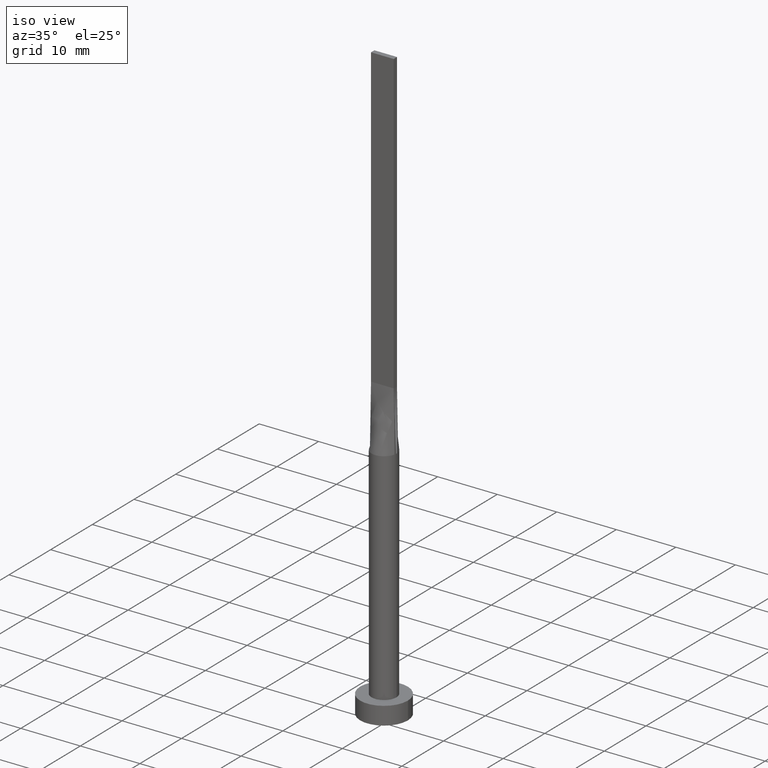
[diagram: clean part render]
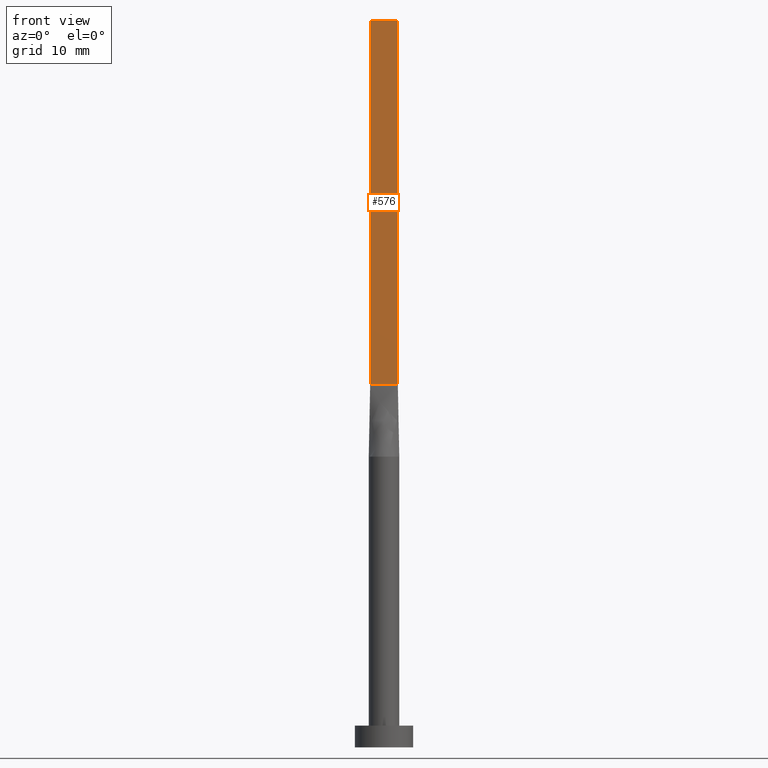
[diagram: tour spotlight — one face highlighted and labeled with its STEP entity id]
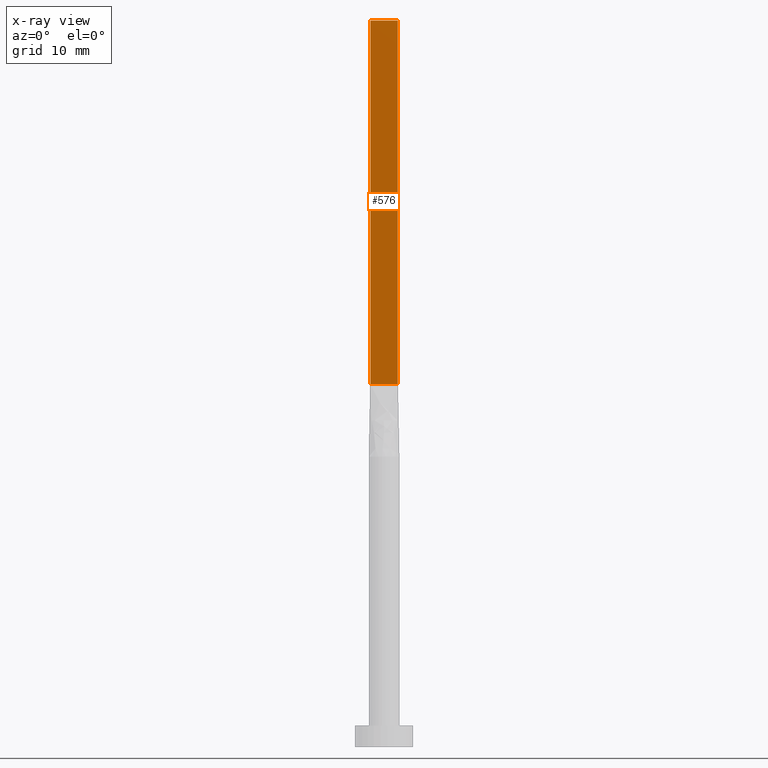
[diagram: x-ray of the same camera — body ghosted, this tour face saturated]
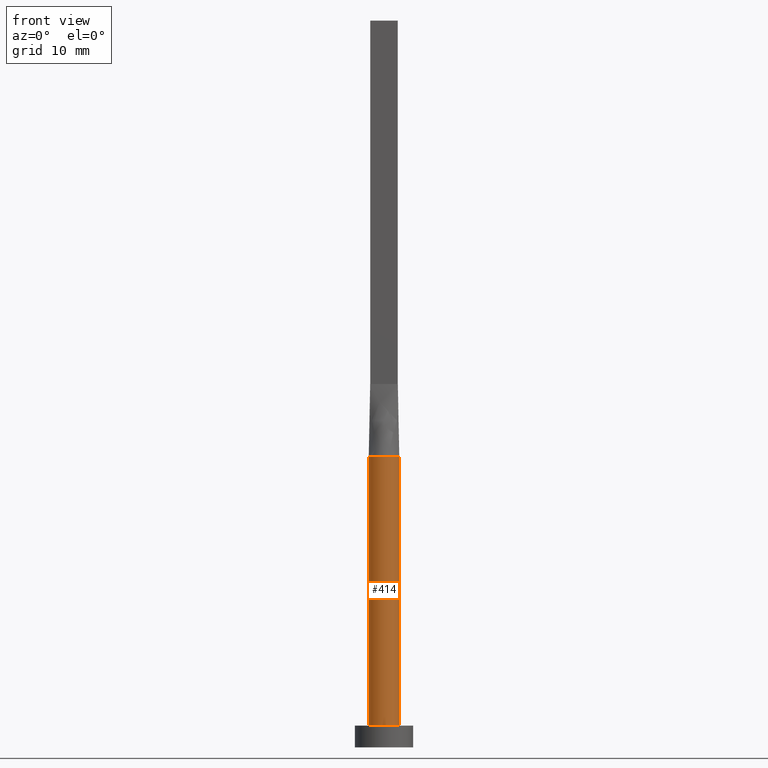
[diagram: tour spotlight — one face highlighted and labeled with its STEP entity id]
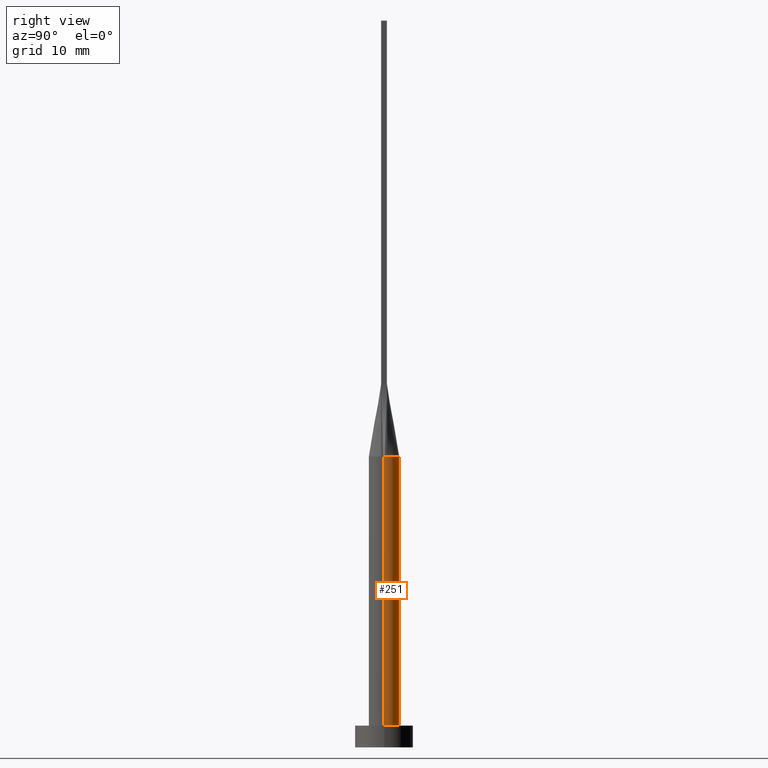
[diagram: tour spotlight — one face highlighted and labeled with its STEP entity id]
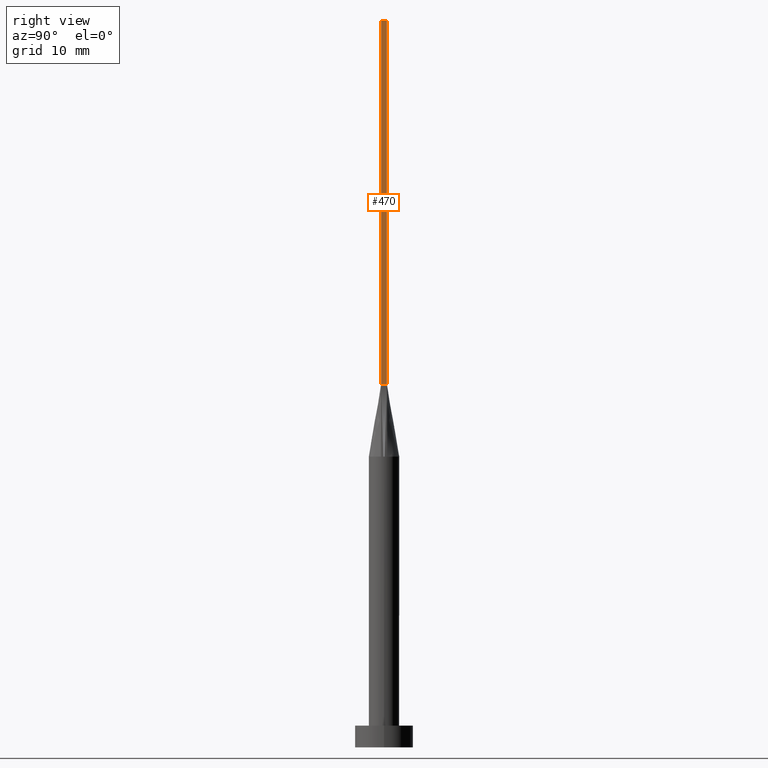
[diagram: tour spotlight — one face highlighted and labeled with its STEP entity id]
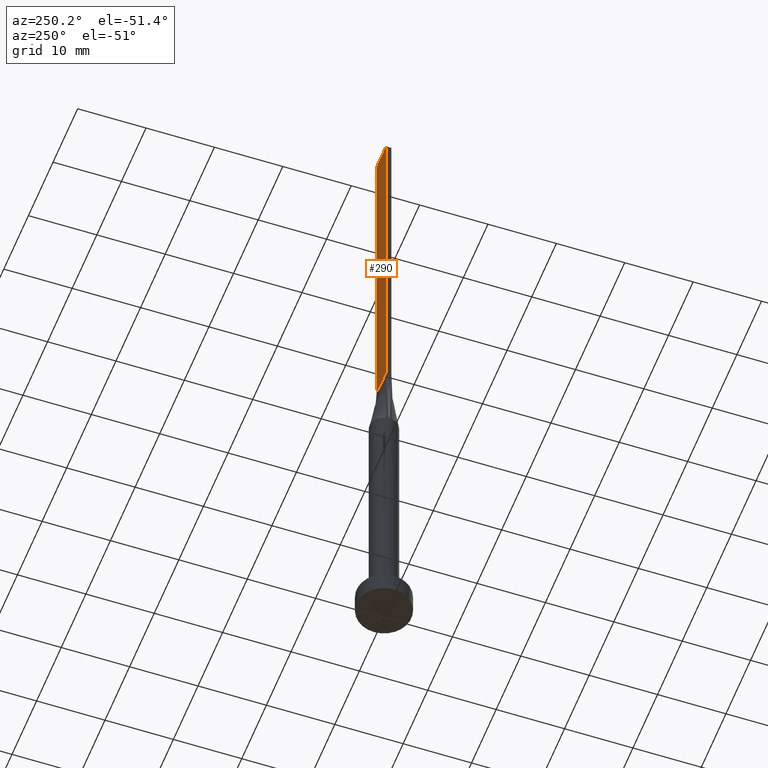
[diagram: tour spotlight — one face highlighted and labeled with its STEP entity id]
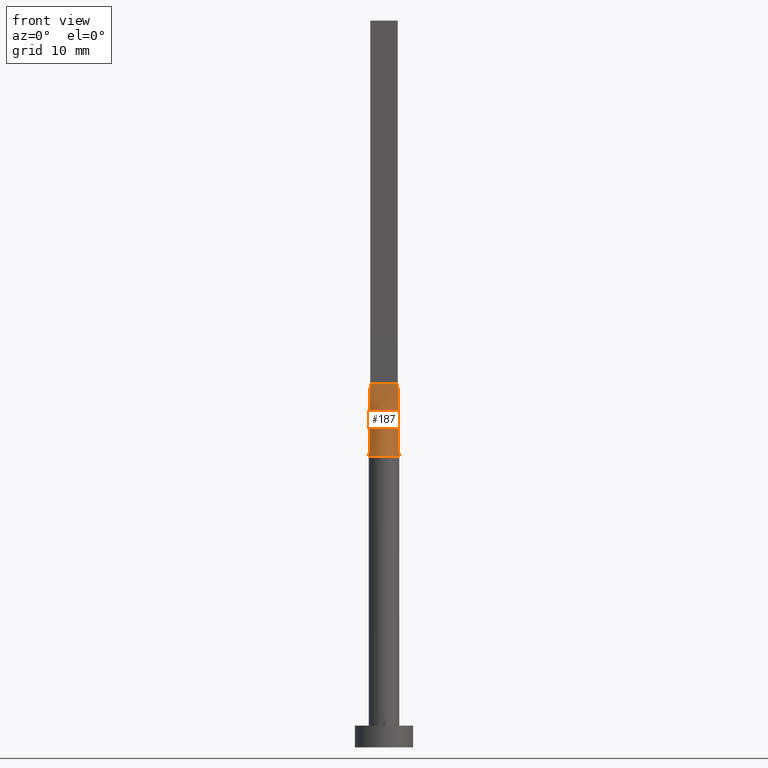
[diagram: tour spotlight — one face highlighted and labeled with its STEP entity id]
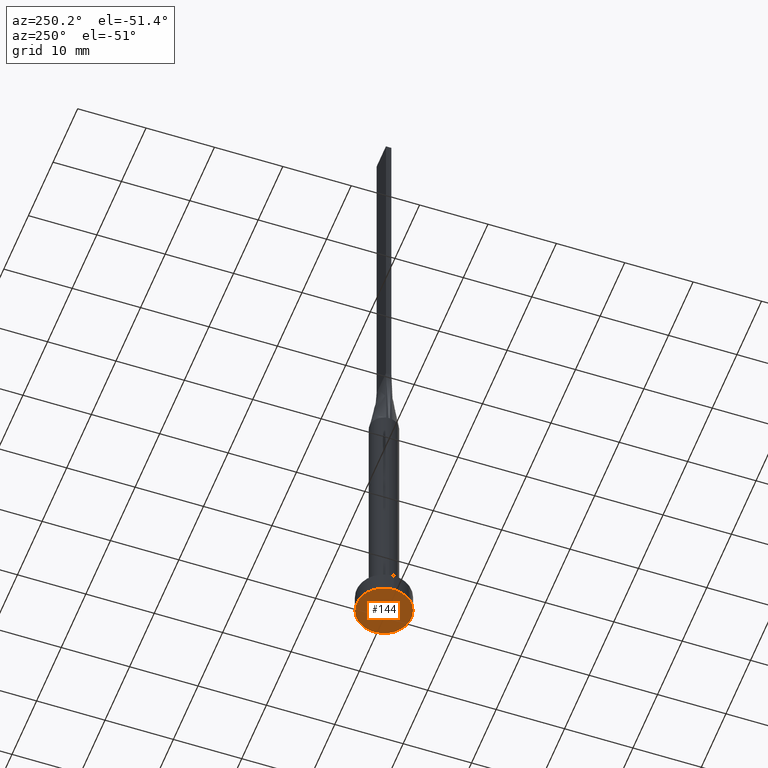
[diagram: tour spotlight — one face highlighted and labeled with its STEP entity id]
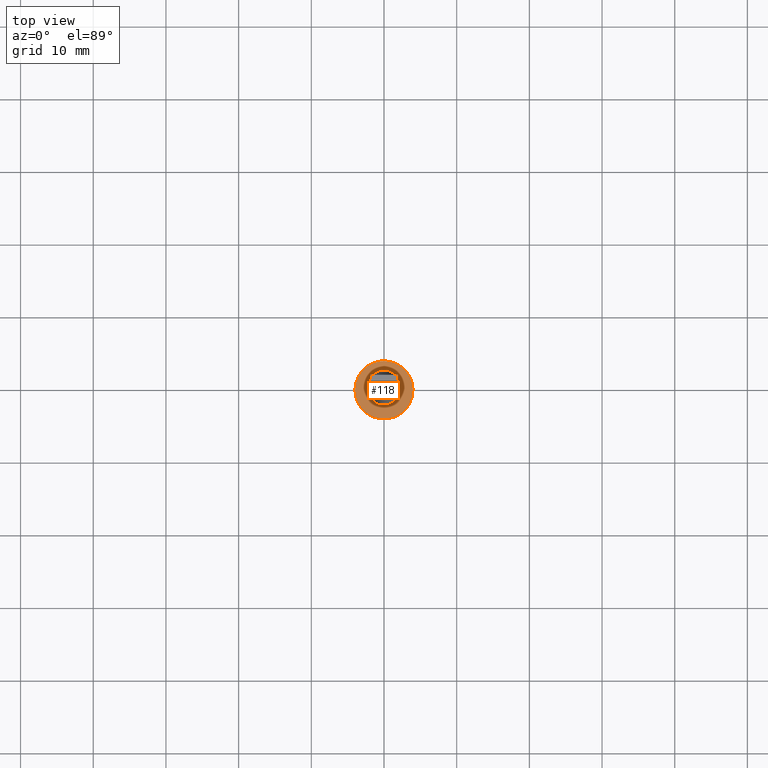
[diagram: tour spotlight — one face highlighted and labeled with its STEP entity id]
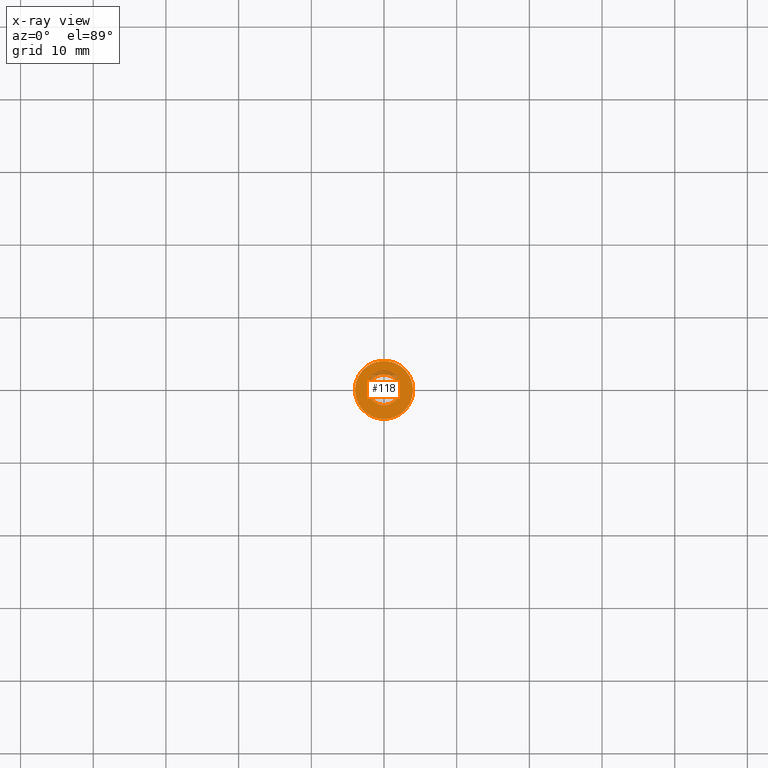
[diagram: x-ray of the same camera — body ghosted, this tour face saturated]
A machine part: a face-by-face anatomy tour. The part has 15 B-rep faces; the first image is the clean iso view, then the 8 largest visible faces are spotlighted one at a time (largest first), each with its STEP entity span.

Face 1 — front view, entity #576. An x-ray twin of the same camera follows (body ghosted, this face saturated) — the face is partly hidden behind the body. In plain terms, the highlighted planar face has unit normal (0, 1, -0).
Definition (entity closure, byte-faithful):
#5 = VERTEX_POINT ( 'NONE', #125 ) ;
#23 = AXIS2_PLACEMENT_3D ( 'NONE', #132, #80, #566 ) ;
#42 = CARTESIAN_POINT ( 'NONE',  ( -1.899999999999999911, -0.3999999999999995781, 50.00000000000000000 ) ) ;
#46 = VECTOR ( 'NONE', #106, 1000.000000000000000 ) ;
#80 = DIRECTION ( 'NONE',  ( 5.706327223607920020E-17, 1.000000000000000000, -0.000000000000000000 ) ) ;
#87 = VECTOR ( 'NONE', #335, 1000.000000000000000 ) ;
#98 = DIRECTION ( 'NONE',  ( 1.000000000000000000, -5.706327223607918787E-17, 0.000000000000000000 ) ) ;
#106 = DIRECTION ( 'NONE',  ( 1.000000000000000000, -5.706327223607920020E-17, 0.000000000000000000 ) ) ;
#112 = LINE ( 'NONE', #242, #87 ) ;
#125 = CARTESIAN_POINT ( 'NONE',  ( 1.899999999999999023, -0.3999999999999998002, 50.00000000000000000 ) ) ;
#132 = CARTESIAN_POINT ( 'NONE',  ( -1.899999999999999911, -0.3999999999999995781, 100.0000000000000000 ) ) ;
#151 = CARTESIAN_POINT ( 'NONE',  ( -1.899999999999999911, -0.3999999999999995781, 100.0000000000000000 ) ) ;
#182 = VECTOR ( 'NONE', #392, 1000.000000000000000 ) ;
#200 = ORIENTED_EDGE ( 'NONE', *, *, #561, .F. ) ;
#220 = EDGE_CURVE ( 'NONE', #484, #502, #549, .T. ) ;
#233 = ORIENTED_EDGE ( 'NONE', *, *, #422, .T. ) ;
#242 = CARTESIAN_POINT ( 'NONE',  ( -1.899999999999999911, -0.3999999999999995781, 100.0000000000000000 ) ) ;
#300 = EDGE_CURVE ( 'NONE', #484, #463, #112, .T. ) ;
#302 = CARTESIAN_POINT ( 'NONE',  ( 1.899999999999999023, -0.3999999999999998002, 100.0000000000000000 ) ) ;
#312 = LINE ( 'NONE', #439, #398 ) ;
#335 = DIRECTION ( 'NONE',  ( -0.000000000000000000, -0.000000000000000000, -1.000000000000000000 ) ) ;
#347 = FACE_OUTER_BOUND ( 'NONE', #486, .T. ) ;
#349 = ORIENTED_EDGE ( 'NONE', *, *, #300, .T. ) ;
#392 = DIRECTION ( 'NONE',  ( -0.000000000000000000, -0.000000000000000000, -1.000000000000000000 ) ) ;
#398 = VECTOR ( 'NONE', #98, 1000.000000000000000 ) ;
#422 = EDGE_CURVE ( 'NONE', #463, #5, #312, .T. ) ;
#438 = ORIENTED_EDGE ( 'NONE', *, *, #220, .F. ) ;
#439 = CARTESIAN_POINT ( 'NONE',  ( -1.899999999999999911, -0.3999999999999995781, 50.00000000000000000 ) ) ;
#463 = VERTEX_POINT ( 'NONE', #42 ) ;
#477 = LINE ( 'NONE', #571, #182 ) ;
#484 = VERTEX_POINT ( 'NONE', #580 ) ;
#486 = EDGE_LOOP ( 'NONE', ( #233, #200, #438, #349 ) ) ;
#502 = VERTEX_POINT ( 'NONE', #302 ) ;
#549 = LINE ( 'NONE', #151, #46 ) ;
#561 = EDGE_CURVE ( 'NONE', #502, #5, #477, .T. ) ;
#566 = DIRECTION ( 'NONE',  ( -1.000000000000000000, 5.706327223607920020E-17, 0.000000000000000000 ) ) ;
#571 = CARTESIAN_POINT ( 'NONE',  ( 1.899999999999999023, -0.3999999999999998002, 100.0000000000000000 ) ) ;
#573 = PLANE ( 'NONE',  #23 ) ;
#576 = ADVANCED_FACE ( 'NONE', ( #347 ), #573, .F. ) ;
#580 = CARTESIAN_POINT ( 'NONE',  ( -1.899999999999999911, -0.3999999999999995781, 100.0000000000000000 ) ) ;

Face 2 — front view, entity #414. In plain terms, the highlighted cylindrical surface (edge-blend (fillet) strip) has radius 2.1 mm, axis along (-0, -0, -1).
Definition (entity closure, byte-faithful):
#3 = DIRECTION ( 'NONE',  ( -0.000000000000000000, -0.000000000000000000, -1.000000000000000000 ) ) ;
#25 = DIRECTION ( 'NONE',  ( 0.000000000000000000, 0.000000000000000000, 1.000000000000000000 ) ) ;
#51 = FACE_OUTER_BOUND ( 'NONE', #161, .T. ) ;
#53 = DIRECTION ( 'NONE',  ( -0.000000000000000000, -0.000000000000000000, -1.000000000000000000 ) ) ;
#54 = DIRECTION ( 'NONE',  ( 1.000000000000000000, -8.881784197001252323E-16, 0.000000000000000000 ) ) ;
#56 = CIRCLE ( 'NONE', #426, 2.100000000000000089 ) ;
#62 = VERTEX_POINT ( 'NONE', #142 ) ;
#63 = DIRECTION ( 'NONE',  ( 0.000000000000000000, 0.000000000000000000, 1.000000000000000000 ) ) ;
#91 = CARTESIAN_POINT ( 'NONE',  ( -2.100000000000000089, 0.000000000000000000, 3.000000000000000000 ) ) ;
#93 = ORIENTED_EDGE ( 'NONE', *, *, #393, .F. ) ;
#109 = VERTEX_POINT ( 'NONE', #91 ) ;
#115 = ORIENTED_EDGE ( 'NONE', *, *, #214, .F. ) ;
#122 = CARTESIAN_POINT ( 'NONE',  ( -2.055145036631130129, -0.4326623253166036465, 40.00000000000000000 ) ) ;
#136 = AXIS2_PLACEMENT_3D ( 'NONE', #314, #263, #189 ) ;
#142 = CARTESIAN_POINT ( 'NONE',  ( 2.100000000000000089, 2.571758278209441957E-16, 3.000000000000000000 ) ) ;
#150 = ORIENTED_EDGE ( 'NONE', *, *, #163, .T. ) ;
#157 = AXIS2_PLACEMENT_3D ( 'NONE', #415, #63, #371 ) ;
#161 = EDGE_LOOP ( 'NONE', ( #319, #93, #115, #373, #150, #279 ) ) ;
#163 = EDGE_CURVE ( 'NONE', #558, #109, #179, .T. ) ;
#179 = LINE ( 'NONE', #226, #499 ) ;
#189 = DIRECTION ( 'NONE',  ( 1.000000000000000000, 0.000000000000000000, 0.000000000000000000 ) ) ;
#206 = CIRCLE ( 'NONE', #136, 2.100000000000000089 ) ;
#214 = EDGE_CURVE ( 'NONE', #343, #513, #538, .T. ) ;
#223 = CARTESIAN_POINT ( 'NONE',  ( -2.099758441344840243, -1.448674240509545331E-15, 40.00000000000000000 ) ) ;
#226 = CARTESIAN_POINT ( 'NONE',  ( -2.100000000000000089, 0.000000000000000000, 40.00000000000000000 ) ) ;
#237 = CARTESIAN_POINT ( 'NONE',  ( 2.100000000000000089, 2.571758278209441957E-16, 40.00000000000000000 ) ) ;
#263 = DIRECTION ( 'NONE',  ( 0.000000000000000000, 0.000000000000000000, 1.000000000000000000 ) ) ;
#264 = EDGE_CURVE ( 'NONE', #558, #343, #338, .T. ) ;
#269 = CARTESIAN_POINT ( 'NONE',  ( 0.000000000000000000, 0.000000000000000000, 40.00000000000000000 ) ) ;
#272 = CARTESIAN_POINT ( 'NONE',  ( 2.099758441344840243, 4.928843353830161703E-16, 40.00000000000000000 ) ) ;
#279 = ORIENTED_EDGE ( 'NONE', *, *, #404, .T. ) ;
#305 = VECTOR ( 'NONE', #3, 1000.000000000000000 ) ;
#314 = CARTESIAN_POINT ( 'NONE',  ( 0.000000000000000000, 0.000000000000000000, 3.000000000000000000 ) ) ;
#319 = ORIENTED_EDGE ( 'NONE', *, *, #382, .F. ) ;
#338 = CIRCLE ( 'NONE', #446, 2.100000000000000089 ) ;
#343 = VERTEX_POINT ( 'NONE', #122 ) ;
#367 = LINE ( 'NONE', #237, #305 ) ;
#371 = DIRECTION ( 'NONE',  ( 1.000000000000000000, 0.000000000000000000, 0.000000000000000000 ) ) ;
#373 = ORIENTED_EDGE ( 'NONE', *, *, #264, .F. ) ;
#382 = EDGE_CURVE ( 'NONE', #466, #62, #367, .T. ) ;
#393 = EDGE_CURVE ( 'NONE', #513, #466, #56, .T. ) ;
#401 = CARTESIAN_POINT ( 'NONE',  ( 0.000000000000000000, 0.000000000000000000, 40.00000000000000000 ) ) ;
#404 = EDGE_CURVE ( 'NONE', #109, #62, #206, .T. ) ;
#409 = DIRECTION ( 'NONE',  ( -0.000000000000000000, -0.000000000000000000, -1.000000000000000000 ) ) ;
#414 = ADVANCED_FACE ( 'NONE', ( #51 ), #544, .T. ) ;
#415 = CARTESIAN_POINT ( 'NONE',  ( 0.000000000000000000, 0.000000000000000000, 40.00000000000000000 ) ) ;
#426 = AXIS2_PLACEMENT_3D ( 'NONE', #401, #451, #54 ) ;
#446 = AXIS2_PLACEMENT_3D ( 'NONE', #456, #25, #559 ) ;
#451 = DIRECTION ( 'NONE',  ( 0.000000000000000000, 0.000000000000000000, 1.000000000000000000 ) ) ;
#456 = CARTESIAN_POINT ( 'NONE',  ( 0.000000000000000000, 0.000000000000000000, 40.00000000000000000 ) ) ;
#466 = VERTEX_POINT ( 'NONE', #272 ) ;
#491 = DIRECTION ( 'NONE',  ( -1.000000000000000000, 0.000000000000000000, 0.000000000000000000 ) ) ;
#499 = VECTOR ( 'NONE', #53, 1000.000000000000000 ) ;
#513 = VERTEX_POINT ( 'NONE', #528 ) ;
#525 = AXIS2_PLACEMENT_3D ( 'NONE', #269, #409, #491 ) ;
#528 = CARTESIAN_POINT ( 'NONE',  ( 2.055161022591414977, -0.4326655822303633325, 40.00000000000000000 ) ) ;
#538 = CIRCLE ( 'NONE', #157, 2.100000000000000089 ) ;
#544 = CYLINDRICAL_SURFACE ( 'NONE', #525, 2.100000000000000089 ) ;
#558 = VERTEX_POINT ( 'NONE', #223 ) ;
#559 = DIRECTION ( 'NONE',  ( 1.000000000000000000, 0.000000000000000000, 0.000000000000000000 ) ) ;

Face 3 — right view, entity #251. In plain terms, the highlighted cylindrical surface (edge-blend (fillet) strip) has radius 2.1 mm, axis along (-0, -0, -1).
Definition (entity closure, byte-faithful):
#1 = DIRECTION ( 'NONE',  ( 1.000000000000000000, 0.000000000000000000, 0.000000000000000000 ) ) ;
#3 = DIRECTION ( 'NONE',  ( -0.000000000000000000, -0.000000000000000000, -1.000000000000000000 ) ) ;
#17 = DIRECTION ( 'NONE',  ( 1.000000000000000000, 0.000000000000000000, 0.000000000000000000 ) ) ;
#26 = CARTESIAN_POINT ( 'NONE',  ( 0.5670887265440297531, 2.040296735810463780, 40.00000000000000711 ) ) ;
#38 = ORIENTED_EDGE ( 'NONE', *, *, #108, .F. ) ;
#47 = ORIENTED_EDGE ( 'NONE', *, *, #382, .T. ) ;
#53 = DIRECTION ( 'NONE',  ( -0.000000000000000000, -0.000000000000000000, -1.000000000000000000 ) ) ;
#62 = VERTEX_POINT ( 'NONE', #142 ) ;
#64 = CARTESIAN_POINT ( 'NONE',  ( -1.960396204527856456, 0.7808940436533434726, 40.00000000000000000 ) ) ;
#67 = CARTESIAN_POINT ( 'NONE',  ( 0.2839879338753505955, 2.100000000000000533, 40.00000000000000000 ) ) ;
#91 = CARTESIAN_POINT ( 'NONE',  ( -2.100000000000000089, 0.000000000000000000, 3.000000000000000000 ) ) ;
#107 = CARTESIAN_POINT ( 'NONE',  ( -1.638039177766652976, 1.336522195786985057, 40.00000000000000711 ) ) ;
#108 = EDGE_CURVE ( 'NONE', #533, #558, #405, .T. ) ;
#109 = VERTEX_POINT ( 'NONE', #91 ) ;
#117 = CARTESIAN_POINT ( 'NONE',  ( 2.055132260641998609, 0.4326595789354660826, 40.00000000000000000 ) ) ;
#119 = CARTESIAN_POINT ( 'NONE',  ( 0.000000000000000000, 0.000000000000000000, 40.00000000000000000 ) ) ;
#135 = CARTESIAN_POINT ( 'NONE',  ( 0.000000000000000000, 0.000000000000000000, 40.00000000000000000 ) ) ;
#142 = CARTESIAN_POINT ( 'NONE',  ( 2.100000000000000089, 2.571758278209441957E-16, 3.000000000000000000 ) ) ;
#153 = EDGE_LOOP ( 'NONE', ( #359, #47, #331, #467, #38, #458 ) ) ;
#160 = CARTESIAN_POINT ( 'NONE',  ( 1.288188016604684183, 1.676316068528189041, 40.00000000000000711 ) ) ;
#163 = EDGE_CURVE ( 'NONE', #558, #109, #179, .T. ) ;
#165 = AXIS2_PLACEMENT_3D ( 'NONE', #313, #261, #306 ) ;
#177 = EDGE_CURVE ( 'NONE', #466, #362, #341, .T. ) ;
#179 = LINE ( 'NONE', #226, #499 ) ;
#207 = CARTESIAN_POINT ( 'NONE',  ( 0.000000000000000000, 0.000000000000000000, 3.000000000000000000 ) ) ;
#212 = CARTESIAN_POINT ( 'NONE',  ( 1.769939800381044259, 1.149026496286139620, 40.00000000000000000 ) ) ;
#223 = CARTESIAN_POINT ( 'NONE',  ( -2.099758441344840243, -1.448674240509545331E-15, 40.00000000000000000 ) ) ;
#226 = CARTESIAN_POINT ( 'NONE',  ( -2.100000000000000089, 0.000000000000000000, 40.00000000000000000 ) ) ;
#237 = CARTESIAN_POINT ( 'NONE',  ( 2.100000000000000089, 2.571758278209441957E-16, 40.00000000000000000 ) ) ;
#247 = CARTESIAN_POINT ( 'NONE',  ( -1.288188016604684183, 1.676316068528189263, 40.00000000000000711 ) ) ;
#249 = CARTESIAN_POINT ( 'NONE',  ( 2.055132260641998609, 0.4326595789354660826, 40.00000000000000000 ) ) ;
#250 = CARTESIAN_POINT ( 'NONE',  ( 2.019676033883313515, 0.6001949545017501997, 39.99999999999998579 ) ) ;
#251 = ADVANCED_FACE ( 'NONE', ( #468 ), #381, .T. ) ;
#259 = AXIS2_PLACEMENT_3D ( 'NONE', #119, #423, #560 ) ;
#261 = DIRECTION ( 'NONE',  ( 0.000000000000000000, 0.000000000000000000, 1.000000000000000000 ) ) ;
#272 = CARTESIAN_POINT ( 'NONE',  ( 2.099758441344840243, 4.928843353830161703E-16, 40.00000000000000000 ) ) ;
#305 = VECTOR ( 'NONE', #3, 1000.000000000000000 ) ;
#306 = DIRECTION ( 'NONE',  ( 1.000000000000000000, 0.000000000000000000, 0.000000000000000000 ) ) ;
#313 = CARTESIAN_POINT ( 'NONE',  ( 0.000000000000000000, 0.000000000000000000, 40.00000000000000000 ) ) ;
#316 = EDGE_CURVE ( 'NONE', #62, #109, #411, .T. ) ;
#321 = B_SPLINE_CURVE_WITH_KNOTS ( 'NONE', 3,
 ( #117, #250, #424, #212, #563, #160, #556, #26, #67, #384, #326, #501, #247, #107, #461, #64, #397, #449 ),
 .UNSPECIFIED., .F., .F.,
 ( 4, 2, 2, 2, 2, 2, 2, 2, 4 ),
 ( 0.000000000000000000, 0.1250000000000000000, 0.2500000000000000000, 0.3750000000000000000, 0.5000000000000000000, 0.6250000000000000000, 0.7500000000000000000, 0.8750000000000000000, 1.000000000000000000 ),
 .UNSPECIFIED. ) ;
#326 = CARTESIAN_POINT ( 'NONE',  ( -0.5670887265440298641, 2.040296735810464668, 40.00000000000000711 ) ) ;
#330 = DIRECTION ( 'NONE',  ( 0.000000000000000000, 0.000000000000000000, 1.000000000000000000 ) ) ;
#331 = ORIENTED_EDGE ( 'NONE', *, *, #316, .T. ) ;
#341 = CIRCLE ( 'NONE', #165, 2.100000000000000089 ) ;
#359 = ORIENTED_EDGE ( 'NONE', *, *, #177, .F. ) ;
#362 = VERTEX_POINT ( 'NONE', #249 ) ;
#367 = LINE ( 'NONE', #237, #305 ) ;
#372 = AXIS2_PLACEMENT_3D ( 'NONE', #135, #577, #1 ) ;
#375 = EDGE_CURVE ( 'NONE', #362, #533, #321, .T. ) ;
#378 = AXIS2_PLACEMENT_3D ( 'NONE', #207, #330, #17 ) ;
#381 = CYLINDRICAL_SURFACE ( 'NONE', #259, 2.100000000000000089 ) ;
#382 = EDGE_CURVE ( 'NONE', #466, #62, #367, .T. ) ;
#384 = CARTESIAN_POINT ( 'NONE',  ( -0.2839879338753505955, 2.100000000000000533, 39.99999999999998579 ) ) ;
#397 = CARTESIAN_POINT ( 'NONE',  ( -2.019676033883313959, 0.6001949545017503107, 39.99999999999999289 ) ) ;
#405 = CIRCLE ( 'NONE', #372, 2.100000000000000089 ) ;
#411 = CIRCLE ( 'NONE', #378, 2.100000000000000089 ) ;
#423 = DIRECTION ( 'NONE',  ( -0.000000000000000000, -0.000000000000000000, -1.000000000000000000 ) ) ;
#424 = CARTESIAN_POINT ( 'NONE',  ( 1.960396204527856900, 0.7808940436533436946, 40.00000000000002132 ) ) ;
#449 = CARTESIAN_POINT ( 'NONE',  ( -2.055148177435248691, 0.4326628259079252081, 40.00000000000000000 ) ) ;
#458 = ORIENTED_EDGE ( 'NONE', *, *, #375, .F. ) ;
#461 = CARTESIAN_POINT ( 'NONE',  ( -1.769939800381045147, 1.149026496286139842, 40.00000000000000711 ) ) ;
#466 = VERTEX_POINT ( 'NONE', #272 ) ;
#467 = ORIENTED_EDGE ( 'NONE', *, *, #163, .F. ) ;
#468 = FACE_OUTER_BOUND ( 'NONE', #153, .T. ) ;
#499 = VECTOR ( 'NONE', #53, 1000.000000000000000 ) ;
#501 = CARTESIAN_POINT ( 'NONE',  ( -1.069497409764671003, 1.827724181718571872, 40.00000000000000711 ) ) ;
#533 = VERTEX_POINT ( 'NONE', #575 ) ;
#556 = CARTESIAN_POINT ( 'NONE',  ( 1.069497409764671003, 1.827724181718572538, 40.00000000000000711 ) ) ;
#558 = VERTEX_POINT ( 'NONE', #223 ) ;
#560 = DIRECTION ( 'NONE',  ( -1.000000000000000000, 0.000000000000000000, 0.000000000000000000 ) ) ;
#563 = CARTESIAN_POINT ( 'NONE',  ( 1.638039177766652754, 1.336522195786985057, 40.00000000000000711 ) ) ;
#575 = CARTESIAN_POINT ( 'NONE',  ( -2.055148177435248691, 0.4326628259079252081, 40.00000000000000000 ) ) ;
#577 = DIRECTION ( 'NONE',  ( 0.000000000000000000, 0.000000000000000000, 1.000000000000000000 ) ) ;

Face 4 — right view, entity #470. In plain terms, the highlighted planar face has unit normal (-1, 0, 0).
Definition (entity closure, byte-faithful):
#5 = VERTEX_POINT ( 'NONE', #125 ) ;
#10 = CARTESIAN_POINT ( 'NONE',  ( 1.899999999999999023, -0.3999999999999998002, 100.0000000000000000 ) ) ;
#40 = VECTOR ( 'NONE', #498, 1000.000000000000000 ) ;
#48 = PLANE ( 'NONE',  #420 ) ;
#68 = VECTOR ( 'NONE', #386, 1000.000000000000000 ) ;
#70 = EDGE_CURVE ( 'NONE', #5, #515, #322, .T. ) ;
#94 = FACE_OUTER_BOUND ( 'NONE', #188, .T. ) ;
#97 = ORIENTED_EDGE ( 'NONE', *, *, #514, .F. ) ;
#100 = DIRECTION ( 'NONE',  ( -8.131516293641283255E-16, -1.000000000000000000, 0.000000000000000000 ) ) ;
#125 = CARTESIAN_POINT ( 'NONE',  ( 1.899999999999999023, -0.3999999999999998002, 50.00000000000000000 ) ) ;
#143 = DIRECTION ( 'NONE',  ( -1.000000000000000000, 8.131516293641283255E-16, 0.000000000000000000 ) ) ;
#164 = ORIENTED_EDGE ( 'NONE', *, *, #447, .F. ) ;
#168 = ORIENTED_EDGE ( 'NONE', *, *, #561, .T. ) ;
#173 = CARTESIAN_POINT ( 'NONE',  ( 1.899999999999999689, 0.4000000000000002442, 50.00000000000000000 ) ) ;
#174 = VECTOR ( 'NONE', #364, 1000.000000000000000 ) ;
#182 = VECTOR ( 'NONE', #392, 1000.000000000000000 ) ;
#184 = CARTESIAN_POINT ( 'NONE',  ( 1.899999999999999023, -0.3999999999999998002, 100.0000000000000000 ) ) ;
#188 = EDGE_LOOP ( 'NONE', ( #511, #97, #164, #168 ) ) ;
#254 = LINE ( 'NONE', #395, #68 ) ;
#302 = CARTESIAN_POINT ( 'NONE',  ( 1.899999999999999023, -0.3999999999999998002, 100.0000000000000000 ) ) ;
#322 = LINE ( 'NONE', #361, #40 ) ;
#361 = CARTESIAN_POINT ( 'NONE',  ( 1.899999999999999689, 0.4000000000000002442, 50.00000000000000000 ) ) ;
#364 = DIRECTION ( 'NONE',  ( 8.131516293641283255E-16, 1.000000000000000000, 0.000000000000000000 ) ) ;
#386 = DIRECTION ( 'NONE',  ( -0.000000000000000000, -0.000000000000000000, -1.000000000000000000 ) ) ;
#392 = DIRECTION ( 'NONE',  ( -0.000000000000000000, -0.000000000000000000, -1.000000000000000000 ) ) ;
#395 = CARTESIAN_POINT ( 'NONE',  ( 1.899999999999999689, 0.4000000000000002442, 100.0000000000000000 ) ) ;
#408 = VERTEX_POINT ( 'NONE', #537 ) ;
#420 = AXIS2_PLACEMENT_3D ( 'NONE', #184, #143, #100 ) ;
#445 = LINE ( 'NONE', #10, #174 ) ;
#447 = EDGE_CURVE ( 'NONE', #502, #408, #445, .T. ) ;
#470 = ADVANCED_FACE ( 'NONE', ( #94 ), #48, .F. ) ;
#477 = LINE ( 'NONE', #571, #182 ) ;
#498 = DIRECTION ( 'NONE',  ( -2.710505431213761085E-16, 1.000000000000000000, -0.000000000000000000 ) ) ;
#502 = VERTEX_POINT ( 'NONE', #302 ) ;
#511 = ORIENTED_EDGE ( 'NONE', *, *, #70, .T. ) ;
#514 = EDGE_CURVE ( 'NONE', #408, #515, #254, .T. ) ;
#515 = VERTEX_POINT ( 'NONE', #173 ) ;
#537 = CARTESIAN_POINT ( 'NONE',  ( 1.899999999999999689, 0.4000000000000002442, 100.0000000000000000 ) ) ;
#561 = EDGE_CURVE ( 'NONE', #502, #5, #477, .T. ) ;
#571 = CARTESIAN_POINT ( 'NONE',  ( 1.899999999999999023, -0.3999999999999998002, 100.0000000000000000 ) ) ;

Face 5 — auxiliary view, entity #290. In plain terms, the highlighted planar face has unit normal (0, -1, 0).
Definition (entity closure, byte-faithful):
#7 = CARTESIAN_POINT ( 'NONE',  ( -1.899999999999999689, 0.4000000000000002442, 50.00000000000000000 ) ) ;
#20 = CARTESIAN_POINT ( 'NONE',  ( 1.899999999999999689, 0.4000000000000002442, 100.0000000000000000 ) ) ;
#35 = EDGE_LOOP ( 'NONE', ( #57, #495, #328, #332 ) ) ;
#37 = VECTOR ( 'NONE', #69, 1000.000000000000000 ) ;
#57 = ORIENTED_EDGE ( 'NONE', *, *, #346, .T. ) ;
#59 = FACE_OUTER_BOUND ( 'NONE', #35, .T. ) ;
#68 = VECTOR ( 'NONE', #386, 1000.000000000000000 ) ;
#69 = DIRECTION ( 'NONE',  ( -1.000000000000000000, -0.000000000000000000, -0.000000000000000000 ) ) ;
#173 = CARTESIAN_POINT ( 'NONE',  ( 1.899999999999999689, 0.4000000000000002442, 50.00000000000000000 ) ) ;
#202 = LINE ( 'NONE', #510, #554 ) ;
#205 = LINE ( 'NONE', #519, #504 ) ;
#213 = AXIS2_PLACEMENT_3D ( 'NONE', #20, #337, #281 ) ;
#227 = VERTEX_POINT ( 'NONE', #280 ) ;
#254 = LINE ( 'NONE', #395, #68 ) ;
#275 = EDGE_CURVE ( 'NONE', #227, #444, #202, .T. ) ;
#280 = CARTESIAN_POINT ( 'NONE',  ( -1.899999999999999689, 0.4000000000000002442, 100.0000000000000000 ) ) ;
#281 = DIRECTION ( 'NONE',  ( 0.000000000000000000, -0.000000000000000000, -1.000000000000000000 ) ) ;
#289 = CARTESIAN_POINT ( 'NONE',  ( -1.899999999999999689, 0.4000000000000002442, 50.00000000000000000 ) ) ;
#290 = ADVANCED_FACE ( 'NONE', ( #59 ), #516, .F. ) ;
#328 = ORIENTED_EDGE ( 'NONE', *, *, #336, .F. ) ;
#332 = ORIENTED_EDGE ( 'NONE', *, *, #514, .T. ) ;
#336 = EDGE_CURVE ( 'NONE', #408, #227, #205, .T. ) ;
#337 = DIRECTION ( 'NONE',  ( 0.000000000000000000, -1.000000000000000000, 0.000000000000000000 ) ) ;
#346 = EDGE_CURVE ( 'NONE', #515, #444, #552, .T. ) ;
#386 = DIRECTION ( 'NONE',  ( -0.000000000000000000, -0.000000000000000000, -1.000000000000000000 ) ) ;
#395 = CARTESIAN_POINT ( 'NONE',  ( 1.899999999999999689, 0.4000000000000002442, 100.0000000000000000 ) ) ;
#408 = VERTEX_POINT ( 'NONE', #537 ) ;
#419 = DIRECTION ( 'NONE',  ( -0.000000000000000000, -0.000000000000000000, -1.000000000000000000 ) ) ;
#444 = VERTEX_POINT ( 'NONE', #7 ) ;
#462 = DIRECTION ( 'NONE',  ( -1.000000000000000000, 0.000000000000000000, 0.000000000000000000 ) ) ;
#495 = ORIENTED_EDGE ( 'NONE', *, *, #275, .F. ) ;
#504 = VECTOR ( 'NONE', #462, 1000.000000000000000 ) ;
#510 = CARTESIAN_POINT ( 'NONE',  ( -1.899999999999999689, 0.4000000000000002442, 100.0000000000000000 ) ) ;
#514 = EDGE_CURVE ( 'NONE', #408, #515, #254, .T. ) ;
#515 = VERTEX_POINT ( 'NONE', #173 ) ;
#516 = PLANE ( 'NONE',  #213 ) ;
#519 = CARTESIAN_POINT ( 'NONE',  ( 1.899999999999999689, 0.4000000000000002442, 100.0000000000000000 ) ) ;
#537 = CARTESIAN_POINT ( 'NONE',  ( 1.899999999999999689, 0.4000000000000002442, 100.0000000000000000 ) ) ;
#552 = LINE ( 'NONE', #289, #37 ) ;
#554 = VECTOR ( 'NONE', #419, 1000.000000000000000 ) ;

Face 6 — front view, entity #187. In plain terms, the highlighted face is a freeform B-spline surface patch.
Definition (entity closure, byte-faithful):
#5 = VERTEX_POINT ( 'NONE', #125 ) ;
#13 = CARTESIAN_POINT ( 'NONE',  ( 1.638039177766651200, -1.336522195786985279, 40.00000000000000000 ) ) ;
#15 = ORIENTED_EDGE ( 'NONE', *, *, #214, .T. ) ;
#16 = LINE ( 'NONE', #154, #310 ) ;
#18 = CARTESIAN_POINT ( 'NONE',  ( 0.6333333333333337478, -0.3999999999999997446, 50.00000000000000000 ) ) ;
#21 = ORIENTED_EDGE ( 'NONE', *, *, #422, .F. ) ;
#42 = CARTESIAN_POINT ( 'NONE',  ( -1.899999999999999911, -0.3999999999999995781, 50.00000000000000000 ) ) ;
#45 = CARTESIAN_POINT ( 'NONE',  ( -0.2839879338753514282, -2.100000000000000533, 39.99999999999999289 ) ) ;
#49 = CARTESIAN_POINT ( 'NONE',  ( -1.108333333333332504, -0.3999999999999995781, 50.00000000000000000 ) ) ;
#55 = CARTESIAN_POINT ( 'NONE',  ( -0.5670887265440306413, -2.040296735810464668, 40.00000000000001421 ) ) ;
#58 = CARTESIAN_POINT ( 'NONE',  ( 1.899999999999999023, -0.3999999999999998002, 50.00000000000000000 ) ) ;
#63 = DIRECTION ( 'NONE',  ( 0.000000000000000000, 0.000000000000000000, 1.000000000000000000 ) ) ;
#89 = CARTESIAN_POINT ( 'NONE',  ( -1.960396204527856456, -0.7808940436533431395, 40.00000000000000711 ) ) ;
#98 = DIRECTION ( 'NONE',  ( 1.000000000000000000, -5.706327223607918787E-17, 0.000000000000000000 ) ) ;
#102 = CARTESIAN_POINT ( 'NONE',  ( -0.6333333333333325266, -0.3999999999999996336, 50.00000000000000000 ) ) ;
#111 = CARTESIAN_POINT ( 'NONE',  ( 0.2839879338753495963, -2.100000000000000533, 39.99999999999998579 ) ) ;
#122 = CARTESIAN_POINT ( 'NONE',  ( -2.055145036631130129, -0.4326623253166036465, 40.00000000000000000 ) ) ;
#125 = CARTESIAN_POINT ( 'NONE',  ( 1.899999999999999023, -0.3999999999999998002, 50.00000000000000000 ) ) ;
#154 = CARTESIAN_POINT ( 'NONE',  ( -1.977477274236086657, -0.4163110051023335423, 45.00000000000000000 ) ) ;
#157 = AXIS2_PLACEMENT_3D ( 'NONE', #415, #63, #371 ) ;
#162 = ORIENTED_EDGE ( 'NONE', *, *, #475, .T. ) ;
#187 = ADVANCED_FACE ( 'NONE', ( #274 ), #245, .T. ) ;
#191 = LINE ( 'NONE', #229, #434 ) ;
#194 = CARTESIAN_POINT ( 'NONE',  ( -1.288188016604684627, -1.676316068528187930, 39.99999999999998579 ) ) ;
#198 = CARTESIAN_POINT ( 'NONE',  ( 2.019676033883313071, -0.6001949545017514209, 40.00000000000000711 ) ) ;
#201 = CARTESIAN_POINT ( 'NONE',  ( 1.108333333333333171, -0.3999999999999997446, 50.00000000000000000 ) ) ;
#204 = CARTESIAN_POINT ( 'NONE',  ( 0.7916666666666667407, -0.3999999999999997446, 50.00000000000000000 ) ) ;
#209 = EDGE_CURVE ( 'NONE', #463, #343, #16, .T. ) ;
#214 = EDGE_CURVE ( 'NONE', #343, #513, #538, .T. ) ;
#229 = CARTESIAN_POINT ( 'NONE',  ( 1.977477274236086213, -0.4163110051023340419, 45.00000000000000000 ) ) ;
#238 = CARTESIAN_POINT ( 'NONE',  ( -1.638039177766652310, -1.336522195786983724, 39.99999999999999289 ) ) ;
#243 = CARTESIAN_POINT ( 'NONE',  ( 2.054954548472172959, -0.4326220102046682281, 40.00000000000000000 ) ) ;
#245 = B_SPLINE_SURFACE_WITH_KNOTS ( 'NONE', 3, 1, ( 
 ( #358, #480 ),
 ( #355, #450 ),
 ( #89, #369 ),
 ( #266, #547 ),
 ( #238, #49 ),
 ( #194, #490 ),
 ( #452, #102 ),
 ( #55, #437 ),
 ( #45, #399 ),
 ( #111, #412 ),
 ( #329, #418 ),
 ( #325, #18 ),
 ( #377, #204 ),
 ( #13, #201 ),
 ( #505, #500 ),
 ( #374, #551 ),
 ( #198, #283 ),
 ( #243, #58 ) ),
 .UNSPECIFIED., .F., .F., .F.,
 ( 4, 2, 2, 2, 2, 2, 2, 2, 4 ),
 ( 2, 2 ),
 ( 0.000000000000000000, 0.1250000000000000833, 0.2500000000000001110, 0.3750000000000001110, 0.5000000000000001110, 0.6250000000000001110, 0.7500000000000000000, 0.8750000000000000000, 1.000000000000000000 ),
 ( 0.000000000000000000, 1.000000000000000000 ),
 .UNSPECIFIED. ) ;
#266 = CARTESIAN_POINT ( 'NONE',  ( -1.769939800381044481, -1.149026496286139176, 40.00000000000000000 ) ) ;
#274 = FACE_OUTER_BOUND ( 'NONE', #460, .T. ) ;
#276 = DIRECTION ( 'NONE',  ( -0.01549351246150994753, 0.003261792097160015180, 0.9998746480354023802 ) ) ;
#283 = CARTESIAN_POINT ( 'NONE',  ( 1.741666666666665808, -0.3999999999999997446, 50.00000000000000000 ) ) ;
#310 = VECTOR ( 'NONE', #459, 1000.000000000000227 ) ;
#312 = LINE ( 'NONE', #439, #398 ) ;
#325 = CARTESIAN_POINT ( 'NONE',  ( 1.069497409764670115, -1.827724181718573204, 40.00000000000002132 ) ) ;
#329 = CARTESIAN_POINT ( 'NONE',  ( 0.5670887265440289760, -2.040296735810464668, 40.00000000000001421 ) ) ;
#343 = VERTEX_POINT ( 'NONE', #122 ) ;
#355 = CARTESIAN_POINT ( 'NONE',  ( -2.019676033883314403, -0.6001949545017496446, 40.00000000000000000 ) ) ;
#358 = CARTESIAN_POINT ( 'NONE',  ( -2.054954548472173403, -0.4326220102046674509, 40.00000000000000000 ) ) ;
#369 = CARTESIAN_POINT ( 'NONE',  ( -1.583333333333332815, -0.3999999999999995226, 50.00000000000000000 ) ) ;
#371 = DIRECTION ( 'NONE',  ( 1.000000000000000000, 0.000000000000000000, 0.000000000000000000 ) ) ;
#374 = CARTESIAN_POINT ( 'NONE',  ( 1.960396204527856234, -0.7808940436533445828, 40.00000000000000000 ) ) ;
#377 = CARTESIAN_POINT ( 'NONE',  ( 1.288188016604683739, -1.676316068528189263, 40.00000000000001421 ) ) ;
#398 = VECTOR ( 'NONE', #98, 1000.000000000000000 ) ;
#399 = CARTESIAN_POINT ( 'NONE',  ( -0.1583333333333327708, -0.3999999999999996336, 50.00000000000000000 ) ) ;
#412 = CARTESIAN_POINT ( 'NONE',  ( 0.1583333333333337978, -0.3999999999999996336, 50.00000000000000000 ) ) ;
#415 = CARTESIAN_POINT ( 'NONE',  ( 0.000000000000000000, 0.000000000000000000, 40.00000000000000000 ) ) ;
#418 = CARTESIAN_POINT ( 'NONE',  ( 0.3166666666666672070, -0.3999999999999996891, 50.00000000000000000 ) ) ;
#422 = EDGE_CURVE ( 'NONE', #463, #5, #312, .T. ) ;
#434 = VECTOR ( 'NONE', #276, 1000.000000000000227 ) ;
#437 = CARTESIAN_POINT ( 'NONE',  ( -0.3166666666666659302, -0.3999999999999996336, 50.00000000000000000 ) ) ;
#439 = CARTESIAN_POINT ( 'NONE',  ( -1.899999999999999911, -0.3999999999999995781, 50.00000000000000000 ) ) ;
#450 = CARTESIAN_POINT ( 'NONE',  ( -1.741666666666666474, -0.3999999999999995226, 50.00000000000000000 ) ) ;
#452 = CARTESIAN_POINT ( 'NONE',  ( -1.069497409764672113, -1.827724181718571650, 40.00000000000002132 ) ) ;
#459 = DIRECTION ( 'NONE',  ( -0.01549351246150990416, -0.003261792097159956199, -0.9998746480354023802 ) ) ;
#460 = EDGE_LOOP ( 'NONE', ( #15, #162, #21, #550 ) ) ;
#463 = VERTEX_POINT ( 'NONE', #42 ) ;
#475 = EDGE_CURVE ( 'NONE', #513, #5, #191, .T. ) ;
#480 = CARTESIAN_POINT ( 'NONE',  ( -1.899999999999999911, -0.3999999999999995781, 50.00000000000000000 ) ) ;
#490 = CARTESIAN_POINT ( 'NONE',  ( -0.7916666666666657415, -0.3999999999999996336, 50.00000000000000000 ) ) ;
#500 = CARTESIAN_POINT ( 'NONE',  ( 1.266666666666666385, -0.3999999999999997446, 50.00000000000000000 ) ) ;
#505 = CARTESIAN_POINT ( 'NONE',  ( 1.769939800381043815, -1.149026496286140731, 40.00000000000000711 ) ) ;
#513 = VERTEX_POINT ( 'NONE', #528 ) ;
#528 = CARTESIAN_POINT ( 'NONE',  ( 2.055161022591414977, -0.4326655822303633325, 40.00000000000000000 ) ) ;
#538 = CIRCLE ( 'NONE', #157, 2.100000000000000089 ) ;
#547 = CARTESIAN_POINT ( 'NONE',  ( -1.266666666666665941, -0.3999999999999995226, 50.00000000000000000 ) ) ;
#550 = ORIENTED_EDGE ( 'NONE', *, *, #209, .T. ) ;
#551 = CARTESIAN_POINT ( 'NONE',  ( 1.583333333333332815, -0.3999999999999997446, 50.00000000000000000 ) ) ;

Face 7 — auxiliary view, entity #144. In plain terms, the highlighted planar face has unit normal (0, 0, 1).
Definition (entity closure, byte-faithful):
#12 = CIRCLE ( 'NONE', #121, 4.000000000000000000 ) ;
#82 = VERTEX_POINT ( 'NONE', #441 ) ;
#121 = AXIS2_PLACEMENT_3D ( 'NONE', #416, #376, #210 ) ;
#126 = EDGE_CURVE ( 'NONE', #567, #82, #521, .T. ) ;
#137 = ORIENTED_EDGE ( 'NONE', *, *, #246, .F. ) ;
#139 = DIRECTION ( 'NONE',  ( 1.000000000000000000, 0.000000000000000000, 0.000000000000000000 ) ) ;
#144 = ADVANCED_FACE ( 'NONE', ( #574 ), #271, .F. ) ;
#210 = DIRECTION ( 'NONE',  ( 1.000000000000000000, 0.000000000000000000, 0.000000000000000000 ) ) ;
#246 = EDGE_CURVE ( 'NONE', #82, #567, #12, .T. ) ;
#268 = EDGE_LOOP ( 'NONE', ( #543, #137 ) ) ;
#271 = PLANE ( 'NONE',  #436 ) ;
#277 = CARTESIAN_POINT ( 'NONE',  ( 0.000000000000000000, 0.000000000000000000, 0.000000000000000000 ) ) ;
#308 = CARTESIAN_POINT ( 'NONE',  ( 0.000000000000000000, 0.000000000000000000, 0.000000000000000000 ) ) ;
#376 = DIRECTION ( 'NONE',  ( 0.000000000000000000, 0.000000000000000000, 1.000000000000000000 ) ) ;
#407 = DIRECTION ( 'NONE',  ( 0.000000000000000000, 0.000000000000000000, 1.000000000000000000 ) ) ;
#416 = CARTESIAN_POINT ( 'NONE',  ( 0.000000000000000000, 0.000000000000000000, 0.000000000000000000 ) ) ;
#429 = AXIS2_PLACEMENT_3D ( 'NONE', #277, #407, #139 ) ;
#436 = AXIS2_PLACEMENT_3D ( 'NONE', #308, #448, #532 ) ;
#441 = CARTESIAN_POINT ( 'NONE',  ( 4.000000000000000000, 4.898587196589412829E-16, 0.000000000000000000 ) ) ;
#448 = DIRECTION ( 'NONE',  ( 0.000000000000000000, 0.000000000000000000, 1.000000000000000000 ) ) ;
#521 = CIRCLE ( 'NONE', #429, 4.000000000000000000 ) ;
#532 = DIRECTION ( 'NONE',  ( 1.000000000000000000, 0.000000000000000000, -0.000000000000000000 ) ) ;
#543 = ORIENTED_EDGE ( 'NONE', *, *, #126, .F. ) ;
#567 = VERTEX_POINT ( 'NONE', #568 ) ;
#568 = CARTESIAN_POINT ( 'NONE',  ( -4.000000000000000000, 0.000000000000000000, 0.000000000000000000 ) ) ;
#574 = FACE_OUTER_BOUND ( 'NONE', #268, .T. ) ;

Face 8 — top view, entity #118. An x-ray twin of the same camera follows (body ghosted, this face saturated) — the face is partly hidden behind the body. In plain terms, the highlighted planar face has unit normal (0, 0, 1).
Definition (entity closure, byte-faithful):
#17 = DIRECTION ( 'NONE',  ( 1.000000000000000000, 0.000000000000000000, 0.000000000000000000 ) ) ;
#41 = DIRECTION ( 'NONE',  ( 1.000000000000000000, 0.000000000000000000, -0.000000000000000000 ) ) ;
#62 = VERTEX_POINT ( 'NONE', #142 ) ;
#91 = CARTESIAN_POINT ( 'NONE',  ( -2.100000000000000089, 0.000000000000000000, 3.000000000000000000 ) ) ;
#105 = ORIENTED_EDGE ( 'NONE', *, *, #230, .T. ) ;
#109 = VERTEX_POINT ( 'NONE', #91 ) ;
#118 = ADVANCED_FACE ( 'NONE', ( #181, #542 ), #232, .T. ) ;
#124 = AXIS2_PLACEMENT_3D ( 'NONE', #318, #539, #41 ) ;
#136 = AXIS2_PLACEMENT_3D ( 'NONE', #314, #263, #189 ) ;
#140 = VERTEX_POINT ( 'NONE', #494 ) ;
#142 = CARTESIAN_POINT ( 'NONE',  ( 2.100000000000000089, 2.571758278209441957E-16, 3.000000000000000000 ) ) ;
#178 = EDGE_LOOP ( 'NONE', ( #193, #323 ) ) ;
#181 = FACE_BOUND ( 'NONE', #178, .T. ) ;
#189 = DIRECTION ( 'NONE',  ( 1.000000000000000000, 0.000000000000000000, 0.000000000000000000 ) ) ;
#193 = ORIENTED_EDGE ( 'NONE', *, *, #404, .F. ) ;
#206 = CIRCLE ( 'NONE', #136, 2.100000000000000089 ) ;
#207 = CARTESIAN_POINT ( 'NONE',  ( 0.000000000000000000, 0.000000000000000000, 3.000000000000000000 ) ) ;
#230 = EDGE_CURVE ( 'NONE', #140, #282, #472, .T. ) ;
#232 = PLANE ( 'NONE',  #124 ) ;
#263 = DIRECTION ( 'NONE',  ( 0.000000000000000000, 0.000000000000000000, 1.000000000000000000 ) ) ;
#270 = CIRCLE ( 'NONE', #357, 4.000000000000000000 ) ;
#282 = VERTEX_POINT ( 'NONE', #286 ) ;
#286 = CARTESIAN_POINT ( 'NONE',  ( 4.000000000000000000, 4.898587196589412829E-16, 3.000000000000000000 ) ) ;
#287 = DIRECTION ( 'NONE',  ( 0.000000000000000000, 0.000000000000000000, 1.000000000000000000 ) ) ;
#288 = AXIS2_PLACEMENT_3D ( 'NONE', #455, #287, #383 ) ;
#307 = DIRECTION ( 'NONE',  ( 1.000000000000000000, 0.000000000000000000, 0.000000000000000000 ) ) ;
#314 = CARTESIAN_POINT ( 'NONE',  ( 0.000000000000000000, 0.000000000000000000, 3.000000000000000000 ) ) ;
#316 = EDGE_CURVE ( 'NONE', #62, #109, #411, .T. ) ;
#318 = CARTESIAN_POINT ( 'NONE',  ( 0.000000000000000000, 0.000000000000000000, 3.000000000000000000 ) ) ;
#323 = ORIENTED_EDGE ( 'NONE', *, *, #316, .F. ) ;
#330 = DIRECTION ( 'NONE',  ( 0.000000000000000000, 0.000000000000000000, 1.000000000000000000 ) ) ;
#357 = AXIS2_PLACEMENT_3D ( 'NONE', #360, #479, #307 ) ;
#360 = CARTESIAN_POINT ( 'NONE',  ( 0.000000000000000000, 0.000000000000000000, 3.000000000000000000 ) ) ;
#378 = AXIS2_PLACEMENT_3D ( 'NONE', #207, #330, #17 ) ;
#383 = DIRECTION ( 'NONE',  ( 1.000000000000000000, 0.000000000000000000, 0.000000000000000000 ) ) ;
#404 = EDGE_CURVE ( 'NONE', #109, #62, #206, .T. ) ;
#411 = CIRCLE ( 'NONE', #378, 2.100000000000000089 ) ;
#417 = EDGE_LOOP ( 'NONE', ( #105, #540 ) ) ;
#455 = CARTESIAN_POINT ( 'NONE',  ( 0.000000000000000000, 0.000000000000000000, 3.000000000000000000 ) ) ;
#472 = CIRCLE ( 'NONE', #288, 4.000000000000000000 ) ;
#479 = DIRECTION ( 'NONE',  ( 0.000000000000000000, 0.000000000000000000, 1.000000000000000000 ) ) ;
#488 = EDGE_CURVE ( 'NONE', #282, #140, #270, .T. ) ;
#494 = CARTESIAN_POINT ( 'NONE',  ( -4.000000000000000000, 0.000000000000000000, 3.000000000000000000 ) ) ;
#539 = DIRECTION ( 'NONE',  ( 0.000000000000000000, 0.000000000000000000, 1.000000000000000000 ) ) ;
#540 = ORIENTED_EDGE ( 'NONE', *, *, #488, .T. ) ;
#542 = FACE_OUTER_BOUND ( 'NONE', #417, .T. ) ;